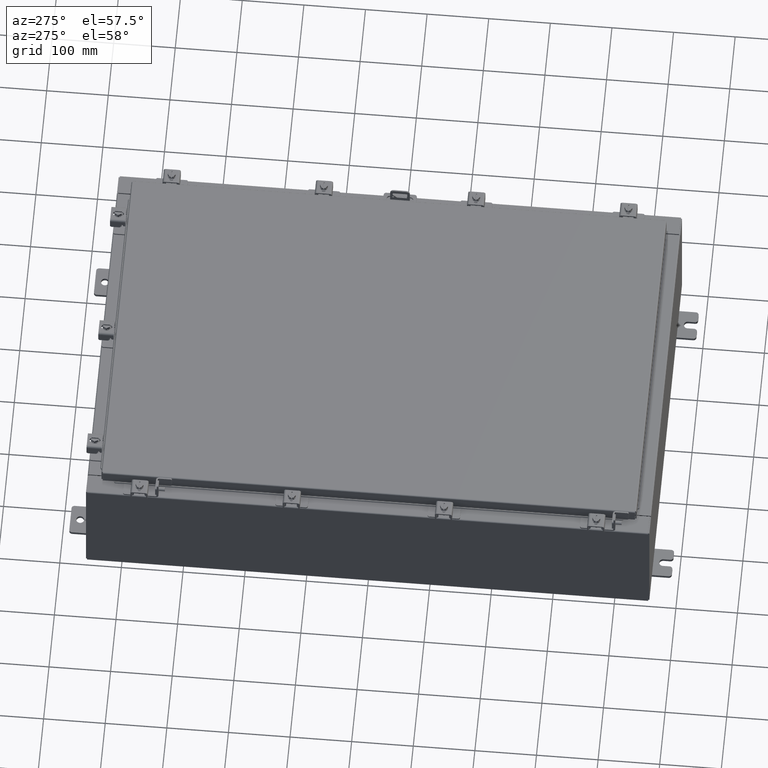
[diagram: clean part render]
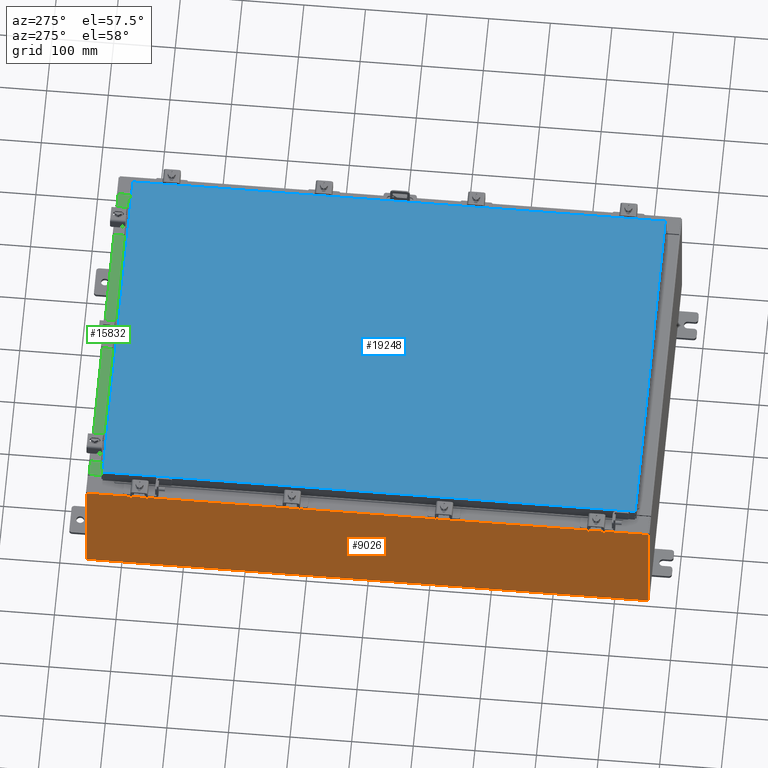
[diagram: same view with three faces highlighted in distinct colors, each labeled with its STEP entity id]
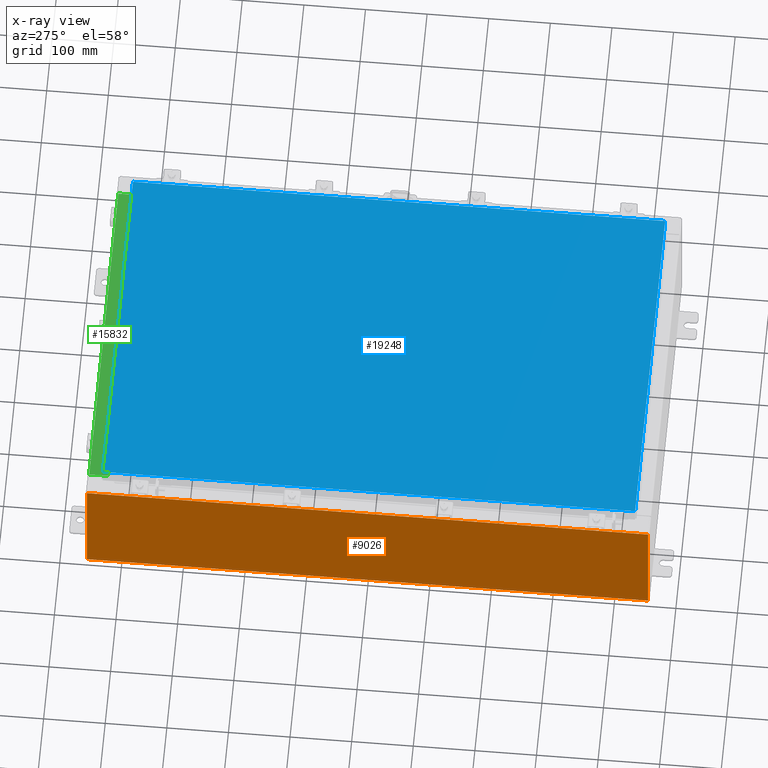
[diagram: x-ray of the same camera — body ghosted, the three highlighted faces saturated]
A machine part, auxiliary view with three faces highlighted in distinct colors.
The next image is the same camera in x-ray (body ghosted, the three faces saturated) — at least one of them is partly hidden behind the body in this view.
Their STEP definitions:

[orange] entity #9026 — the highlighted planar face has unit normal (1, 0, 0).
#747 = ORIENTED_EDGE ( 'NONE', *, *, #4171, .F. ) ;
#2526 = PLANE ( 'NONE',  #10629 ) ;
#2969 = FACE_OUTER_BOUND ( 'NONE', #10045, .T. ) ;
#3288 = CARTESIAN_POINT ( 'NONE',  ( -12.00000000000003000, 17.92529999999999600, 7.837599999999999200 ) ) ;
#3690 = LINE ( 'NONE', #22642, #12675 ) ;
#3704 = LINE ( 'NONE', #9180, #8506 ) ;
#3928 = DIRECTION ( 'NONE',  ( 3.584876173029202900E-015, 0.0000000000000000000, -1.000000000000000000 ) ) ;
#4171 = EDGE_CURVE ( 'NONE', #19880, #19705, #3690, .T. ) ;
#4544 = ORIENTED_EDGE ( 'NONE', *, *, #16068, .T. ) ;
#5180 = VERTEX_POINT ( 'NONE', #3288 ) ;
#5866 = DIRECTION ( 'NONE',  ( -3.584876173029202900E-015, 0.0000000000000000000, 1.000000000000000000 ) ) ;
#6480 = CARTESIAN_POINT ( 'NONE',  ( -12.00000000000000200, 17.92529999999999600, 0.01299999999999983600 ) ) ;
#7962 = DIRECTION ( 'NONE',  ( 1.000000000000000000, 0.0000000000000000000, 3.584876173029202900E-015 ) ) ;
#8302 = EDGE_CURVE ( 'NONE', #19880, #20894, #15361, .T. ) ;
#8506 = VECTOR ( 'NONE', #18101, 39.37007874015748100 ) ;
#9026 = ADVANCED_FACE ( 'NONE', ( #2969 ), #2526, .F. ) ;
#9180 = CARTESIAN_POINT ( 'NONE',  ( -12.00000000000003000, -17.92530000000000400, 7.837599999999999200 ) ) ;
#9828 = ORIENTED_EDGE ( 'NONE', *, *, #18137, .T. ) ;
#10045 = EDGE_LOOP ( 'NONE', ( #4544, #9828, #747, #21147 ) ) ;
#10629 = AXIS2_PLACEMENT_3D ( 'NONE', #18710, #7962, #20509 ) ;
#11181 = DIRECTION ( 'NONE',  ( -0.0000000000000000000, 1.000000000000000000, -0.0000000000000000000 ) ) ;
#11722 = VECTOR ( 'NONE', #5866, 39.37007874015748100 ) ;
#12358 = CARTESIAN_POINT ( 'NONE',  ( -12.00000000000000200, -17.92530000000000400, 0.01299999999999984700 ) ) ;
#12675 = VECTOR ( 'NONE', #11181, 39.37007874015748100 ) ;
#12924 = VECTOR ( 'NONE', #3928, 39.37007874015748100 ) ;
#13468 = LINE ( 'NONE', #21670, #12924 ) ;
#15361 = LINE ( 'NONE', #16612, #11722 ) ;
#16068 = EDGE_CURVE ( 'NONE', #20894, #5180, #3704, .T. ) ;
#16612 = CARTESIAN_POINT ( 'NONE',  ( -12.00000000000000200, -17.92530000000000400, -4.327932773236201900E-014 ) ) ;
#18101 = DIRECTION ( 'NONE',  ( 0.0000000000000000000, 1.000000000000000000, 0.0000000000000000000 ) ) ;
#18137 = EDGE_CURVE ( 'NONE', #5180, #19705, #13468, .T. ) ;
#18710 = CARTESIAN_POINT ( 'NONE',  ( -12.00000000000000200, 0.0000000000000000000, -4.327932773236201900E-014 ) ) ;
#19705 = VERTEX_POINT ( 'NONE', #6480 ) ;
#19880 = VERTEX_POINT ( 'NONE', #12358 ) ;
#20239 = CARTESIAN_POINT ( 'NONE',  ( -12.00000000000003000, -17.92530000000000400, 7.837599999999999200 ) ) ;
#20509 = DIRECTION ( 'NONE',  ( 3.584876173029202900E-015, 0.0000000000000000000, -1.000000000000000000 ) ) ;
#20894 = VERTEX_POINT ( 'NONE', #20239 ) ;
#21147 = ORIENTED_EDGE ( 'NONE', *, *, #8302, .T. ) ;
#21670 = CARTESIAN_POINT ( 'NONE',  ( -12.00000000000000200, 17.92529999999999600, -4.327932773236201900E-014 ) ) ;
#22642 = CARTESIAN_POINT ( 'NONE',  ( -12.00000000000000200, 17.92529999999999600, 0.01299999999999984700 ) ) ;

[blue] entity #19248 — the highlighted planar face has unit normal (0, 0, -1).
#1191 = ORIENTED_EDGE ( 'NONE', *, *, #17672, .T. ) ;
#1314 = CARTESIAN_POINT ( 'NONE',  ( 10.99029999999999800, -17.00630000000000300, -1.297627796990525000E-015 ) ) ;
#1448 = DIRECTION ( 'NONE',  ( 0.0000000000000000000, 1.000000000000000000, 0.0000000000000000000 ) ) ;
#2172 = EDGE_CURVE ( 'NONE', #22569, #20402, #3447, .T. ) ;
#2873 = CARTESIAN_POINT ( 'NONE',  ( -10.99030000000000500, 17.00630000000000000, -2.390366994456230300E-015 ) ) ;
#3071 = CARTESIAN_POINT ( 'NONE',  ( -10.99030000000000500, 17.00630000000000000, -2.390366994456230300E-015 ) ) ;
#3286 = CARTESIAN_POINT ( 'NONE',  ( 10.99029999999999800, 17.00630000000000000, -2.048885995248197400E-016 ) ) ;
#3362 = VECTOR ( 'NONE', #20751, 39.37007874015748100 ) ;
#3399 = VECTOR ( 'NONE', #22308, 39.37007874015748100 ) ;
#3447 = LINE ( 'NONE', #2873, #12987 ) ;
#3503 = PLANE ( 'NONE',  #17442 ) ;
#5096 = LINE ( 'NONE', #20434, #3399 ) ;
#5480 = LINE ( 'NONE', #15819, #14449 ) ;
#6475 = EDGE_CURVE ( 'NONE', #20402, #21222, #14585, .T. ) ;
#7128 = DIRECTION ( 'NONE',  ( 0.0000000000000000000, 0.0000000000000000000, -1.000000000000000000 ) ) ;
#8385 = ORIENTED_EDGE ( 'NONE', *, *, #6475, .T. ) ;
#10004 = CARTESIAN_POINT ( 'NONE',  ( -10.99030000000000100, -17.00630000000000000, 8.878505979408856000E-016 ) ) ;
#12327 = FACE_OUTER_BOUND ( 'NONE', #16473, .T. ) ;
#12987 = VECTOR ( 'NONE', #16717, 39.37007874015748100 ) ;
#13608 = VERTEX_POINT ( 'NONE', #3286 ) ;
#14310 = EDGE_CURVE ( 'NONE', #21222, #13608, #5480, .T. ) ;
#14449 = VECTOR ( 'NONE', #1448, 39.37007874015748100 ) ;
#14585 = LINE ( 'NONE', #10004, #3362 ) ;
#15819 = CARTESIAN_POINT ( 'NONE',  ( 10.99029999999999800, -17.00630000000000300, -1.297627796990525000E-015 ) ) ;
#16255 = ORIENTED_EDGE ( 'NONE', *, *, #14310, .T. ) ;
#16473 = EDGE_LOOP ( 'NONE', ( #8385, #16255, #1191, #21983 ) ) ;
#16717 = DIRECTION ( 'NONE',  ( 0.0000000000000000000, -1.000000000000000000, 0.0000000000000000000 ) ) ;
#17210 = CARTESIAN_POINT ( 'NONE',  ( -10.99030000000000100, -17.00630000000000000, 8.878505979408856000E-016 ) ) ;
#17442 = AXIS2_PLACEMENT_3D ( 'NONE', #17872, #7128, #19667 ) ;
#17672 = EDGE_CURVE ( 'NONE', #13608, #22569, #5096, .T. ) ;
#17872 = CARTESIAN_POINT ( 'NONE',  ( 0.0000000000000000000, 0.0000000000000000000, 0.0000000000000000000 ) ) ;
#19248 = ADVANCED_FACE ( 'NONE', ( #12327 ), #3503, .F. ) ;
#19667 = DIRECTION ( 'NONE',  ( -1.000000000000000000, 0.0000000000000000000, -0.0000000000000000000 ) ) ;
#20402 = VERTEX_POINT ( 'NONE', #17210 ) ;
#20434 = CARTESIAN_POINT ( 'NONE',  ( 10.99029999999999800, 17.00630000000000000, -2.048885995248197400E-016 ) ) ;
#20751 = DIRECTION ( 'NONE',  ( 1.000000000000000000, -0.0000000000000000000, -0.0000000000000000000 ) ) ;
#21222 = VERTEX_POINT ( 'NONE', #1314 ) ;
#21983 = ORIENTED_EDGE ( 'NONE', *, *, #2172, .T. ) ;
#22308 = DIRECTION ( 'NONE',  ( -1.000000000000000000, -0.0000000000000000000, -0.0000000000000000000 ) ) ;
#22569 = VERTEX_POINT ( 'NONE', #3071 ) ;

[green] entity #15832 — the highlighted planar face has unit normal (0, 0, 1).
#443 = DIRECTION ( 'NONE',  ( -1.000000000000000000, 2.568202152506545800E-017, -9.159187855938968600E-032 ) ) ;
#693 = VERTEX_POINT ( 'NONE', #15212 ) ;
#734 = VERTEX_POINT ( 'NONE', #17602 ) ;
#1803 = VERTEX_POINT ( 'NONE', #15726 ) ;
#3888 = VERTEX_POINT ( 'NONE', #9403 ) ;
#5459 = DIRECTION ( 'NONE',  ( -0.0000000000000000000, -1.000000000000000000, 3.566381192773190000E-015 ) ) ;
#6061 = DIRECTION ( 'NONE',  ( -1.000000000000000000, 0.0000000000000000000, 0.0000000000000000000 ) ) ;
#7731 = CARTESIAN_POINT ( 'NONE',  ( -10.63720000000000200, -0.07469999999999973900, 4.000000000000000000 ) ) ;
#8349 = LINE ( 'NONE', #15006, #17327 ) ;
#8492 = DIRECTION ( 'NONE',  ( 0.0000000000000000000, 3.566381192773190000E-015, 1.000000000000000000 ) ) ;
#9263 = LINE ( 'NONE', #7731, #18808 ) ;
#9403 = CARTESIAN_POINT ( 'NONE',  ( -10.63720000000000200, -1.287299999999999200, 4.000000000000004400 ) ) ;
#11857 = FACE_OUTER_BOUND ( 'NONE', #14075, .T. ) ;
#12107 = LINE ( 'NONE', #12663, #21087 ) ;
#12663 = CARTESIAN_POINT ( 'NONE',  ( 10.63720000000000200, -1.300299999999999800, 4.000000000000004400 ) ) ;
#13022 = CARTESIAN_POINT ( 'NONE',  ( -2.252313287748606700E-018, -0.08770000000000000000, 4.000000000000000900 ) ) ;
#13208 = EDGE_CURVE ( 'NONE', #693, #1803, #20943, .T. ) ;
#13794 = PLANE ( 'NONE',  #21273 ) ;
#14045 = ORIENTED_EDGE ( 'NONE', *, *, #13208, .T. ) ;
#14075 = EDGE_LOOP ( 'NONE', ( #22010, #18068, #15796, #14045 ) ) ;
#15006 = CARTESIAN_POINT ( 'NONE',  ( 10.63720000000000400, -1.287299999999999900, 4.000000000000003600 ) ) ;
#15212 = CARTESIAN_POINT ( 'NONE',  ( 10.63720000000000400, -0.08769999999999965300, 4.000000000000000000 ) ) ;
#15602 = CARTESIAN_POINT ( 'NONE',  ( 0.0000000000000000000, 1.425992975200418500E-014, 4.000000000000000000 ) ) ;
#15726 = CARTESIAN_POINT ( 'NONE',  ( -10.63720000000000200, -0.08770000000000000000, 4.000000000000000000 ) ) ;
#15796 = ORIENTED_EDGE ( 'NONE', *, *, #16658, .F. ) ;
#15832 = ADVANCED_FACE ( 'NONE', ( #11857 ), #13794, .T. ) ;
#16658 = EDGE_CURVE ( 'NONE', #693, #734, #12107, .T. ) ;
#17327 = VECTOR ( 'NONE', #6061, 39.37007874015748100 ) ;
#17602 = CARTESIAN_POINT ( 'NONE',  ( 10.63720000000000200, -1.287299999999999900, 4.000000000000004400 ) ) ;
#18068 = ORIENTED_EDGE ( 'NONE', *, *, #22317, .F. ) ;
#18808 = VECTOR ( 'NONE', #20277, 39.37007874015748100 ) ;
#19478 = EDGE_CURVE ( 'NONE', #3888, #1803, #9263, .T. ) ;
#20277 = DIRECTION ( 'NONE',  ( -0.0000000000000000000, 1.000000000000000000, -3.566381192773190000E-015 ) ) ;
#20383 = VECTOR ( 'NONE', #443, 39.37007874015748100 ) ;
#20943 = LINE ( 'NONE', #13022, #20383 ) ;
#21016 = DIRECTION ( 'NONE',  ( 0.0000000000000000000, -1.000000000000000000, 3.566381192773190000E-015 ) ) ;
#21087 = VECTOR ( 'NONE', #5459, 39.37007874015748100 ) ;
#21273 = AXIS2_PLACEMENT_3D ( 'NONE', #15602, #8492, #21016 ) ;
#22010 = ORIENTED_EDGE ( 'NONE', *, *, #19478, .F. ) ;
#22317 = EDGE_CURVE ( 'NONE', #734, #3888, #8349, .T. ) ;